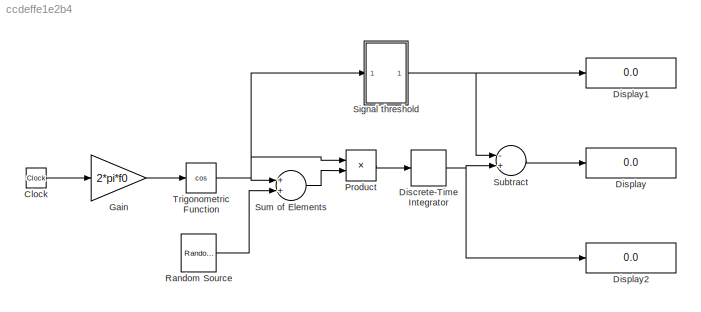
MODEL slx_ccdeffe1e2b4
KIND model
CONFIG AbsTol = auto
CONFIG FixedStep = auto
CONFIG MaxStep = auto
CONFIG MinStep = auto
CONFIG RelTol = 1e-3
CONFIG SampleTimeConstraint = Unconstrained
CONFIG Solver = VariableStepAuto
CONFIG SolverMode = Auto
CONFIG SolverName = VariableStepAuto
CONFIG StartTime = 0.0
CONFIG StopTime = 10.0
BLOCK [Clock] Clock
BLOCK [DiscreteIntegrator] Discrete-Time Integrator
  ICPrevOutput = DiscIntNeverNeededParam
  ICPrevScaledInput = DiscIntNeverNeededParam
  InitialConditionSetting = State (most efficient)
  IntegratorMethod = Accumulation: Forward Euler
  Ports = [1, 1]
  SampleTime = T/N
BLOCK [Display] Display
  Decimation = 1
  Ports = [1]
BLOCK [Display] Display1
  Decimation = 1
  Ports = [1]
BLOCK [Display] Display2
  Decimation = 1
  Ports = [1]
BLOCK [Gain] Gain
  Gain = 2*pi*f0
  OutDataTypeStr = Inherit: Inherit via internal rule
  ParamDataTypeStr = Inherit: Inherit via internal rule
  SaturateOnIntegerOverflow = off
BLOCK [Product] Product
  InputSameDT = off
  OutDataTypeStr = Inherit: Inherit via internal rule
  Ports = [2, 1]
  RndMeth = Floor
  SaturateOnIntegerOverflow = off
BLOCK [Reference] Random Source  REF=dspsrcs4/Random
Source
  Ports = [0, 1]
  SourceBlock = dspsrcs4/Random\nSource
  SourceType = Random Source
  UserDataPersistent = on
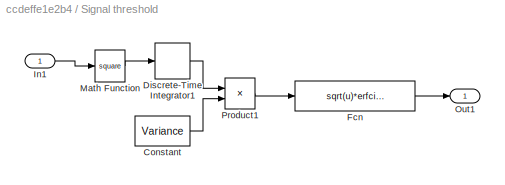
BLOCK [SubSystem] Signal threshold
  Ports = [1, 1]
  RequestExecContextInheritance = off
  Variant = off
BLOCK [Constant] Signal threshold/Constant
  Value = Variance
BLOCK [DiscreteIntegrator] Signal threshold/Discrete-Time Integrator1
  ICPrevOutput = DiscIntNeverNeededParam
  ICPrevScaledInput = DiscIntNeverNeededParam
  InitialConditionSetting = State (most efficient)
  IntegratorMethod = Accumulation: Forward Euler
  Ports = [1, 1]
  SampleTime = T/N
BLOCK [Fcn] Signal threshold/Fcn
  Expr = sqrt(u)*erfcinv(alpha)
BLOCK [Inport] Signal threshold/In1
  IconDisplay = Port number
BLOCK [Math] Signal threshold/Math Function
  Operator = square
  Ports = [1, 1]
BLOCK [Outport] Signal threshold/Out1
  IconDisplay = Port number
BLOCK [Product] Signal threshold/Product1
  InputSameDT = off
  OutDataTypeStr = Inherit: Inherit via internal rule
  Ports = [2, 1]
  RndMeth = Floor
  SaturateOnIntegerOverflow = off
BLOCK [Sum] Subtract
  InputSameDT = off
  Inputs = -+
  OutDataTypeStr = Inherit: Inherit via internal rule
  Ports = [2, 1]
  SaturateOnIntegerOverflow = off
BLOCK [Sum] Sum of Elements
  InputSameDT = off
  OutDataTypeStr = Inherit: Inherit via internal rule
  Ports = [2, 1]
  SaturateOnIntegerOverflow = off
BLOCK [Trigonometry] Trigonometric Function
  Operator = cos
  Ports = [1, 1]
LINE Clock:1 -> Gain:1
NET Discrete-Time Integrator:1 -> Display2:1, Subtract:2
LINE Gain:1 -> Trigonometric Function:1
LINE Product:1 -> Discrete-Time Integrator:1
LINE Random Source:1 -> Sum of Elements:2
LINE Signal threshold/Constant:1 -> Signal threshold/Product1:2
LINE Signal threshold/Discrete-Time Integrator1:1 -> Signal threshold/Product1:1
LINE Signal threshold/Fcn:1 -> Signal threshold/Out1:1
LINE Signal threshold/In1:1 -> Signal threshold/Math Function:1
LINE Signal threshold/Math Function:1 -> Signal threshold/Discrete-Time Integrator1:1
LINE Signal threshold/Product1:1 -> Signal threshold/Fcn:1
NET Signal threshold:1 -> Display1:1, Subtract:1
LINE Subtract:1 -> Display:1
LINE Sum of Elements:1 -> Product:2
NET Trigonometric Function:1 -> Product:1, Signal threshold:1, Sum of Elements:1
note: NET lines group one-source signal fan-out (src -> all destinations, sorted); 1:1 wires keep LINE
